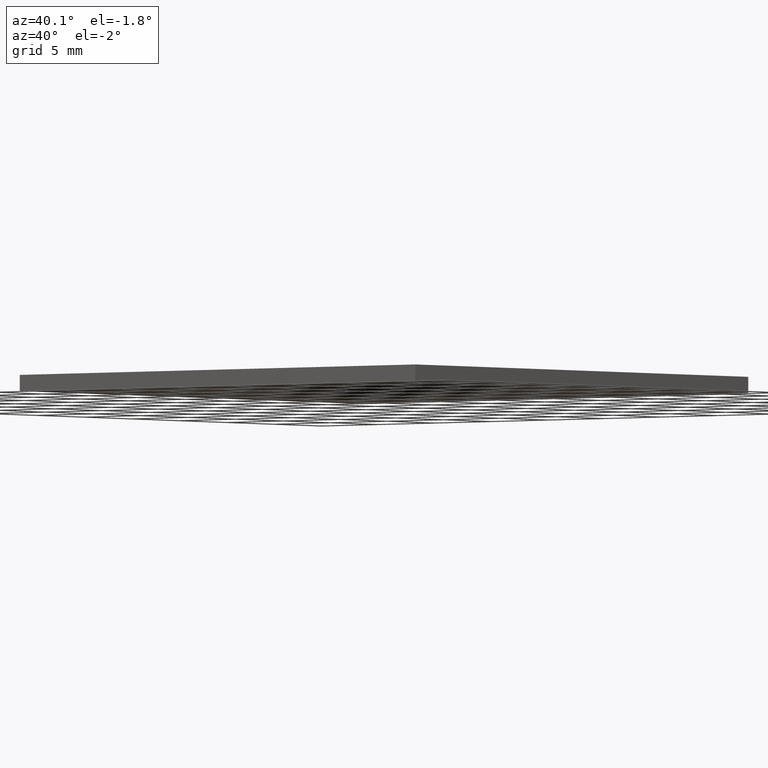
[diagram: clean part render]
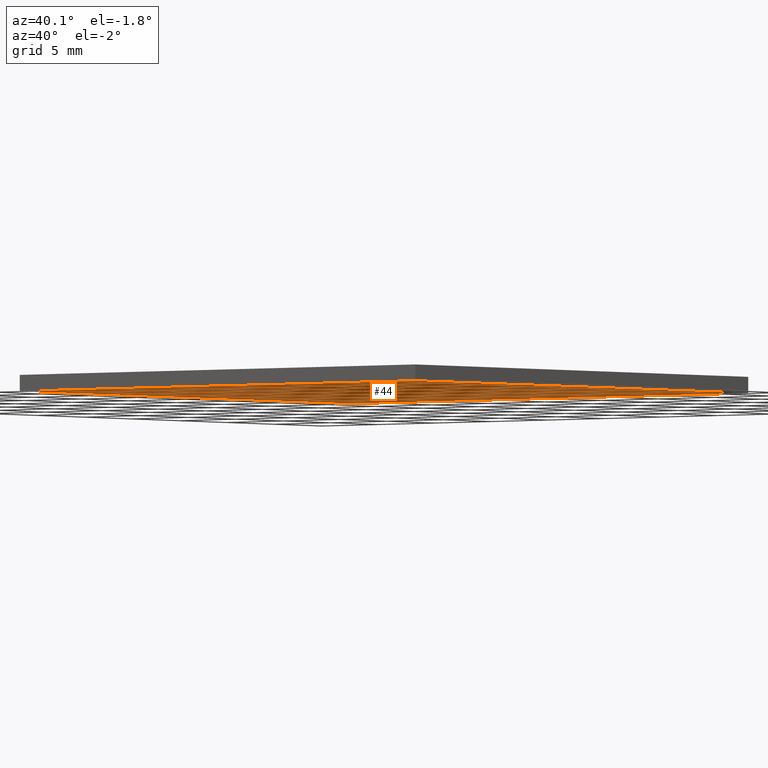
[diagram: same view with one face highlighted and labeled with its STEP entity id]
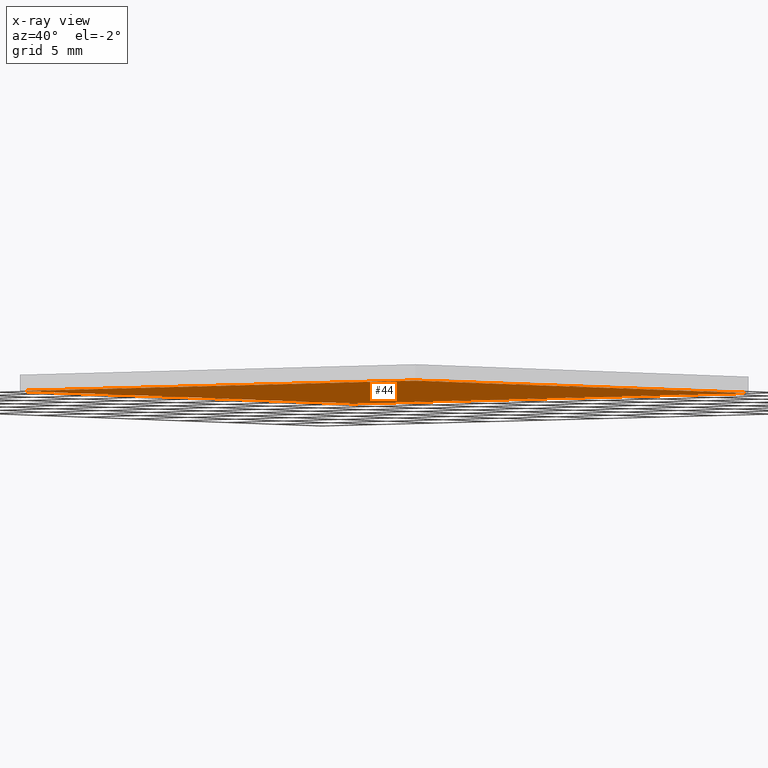
[diagram: x-ray of the same camera — body ghosted, the highlighted face saturated]
A machine part, auxiliary view. The second image highlights one B-rep face of the part: STEP entity #44.
The next image is the same camera in x-ray: the body ghosted, the highlighted face saturated — about 0% of this face is hidden behind the body in this view.
In plain terms, the highlighted planar face has unit normal (0, 0, -1).
Its self-contained STEP definition (entity closure, byte-faithful):
#20 = LINE ( 'NONE', #57, #249 ) ;
#21 = VERTEX_POINT ( 'NONE', #201 ) ;
#24 = EDGE_CURVE ( 'NONE', #292, #289, #20, .T. ) ;
#32 = VECTOR ( 'NONE', #77, 1000.000000000000000 ) ;
#36 = CARTESIAN_POINT ( 'NONE',  ( -17.50000000000000000, -17.50000000000000000, 0.0000000000000000000 ) ) ;
#37 = CARTESIAN_POINT ( 'NONE',  ( 17.50000000000000000, -17.50000000000000000, 0.0000000000000000000 ) ) ;
#44 = ADVANCED_FACE ( 'NONE', ( #105 ), #145, .T. ) ;
#50 = ORIENTED_EDGE ( 'NONE', *, *, #24, .F. ) ;
#52 = VECTOR ( 'NONE', #299, 1000.000000000000000 ) ;
#57 = CARTESIAN_POINT ( 'NONE',  ( -17.50000000000000000, -17.50000000000000000, 0.0000000000000000000 ) ) ;
#70 = VECTOR ( 'NONE', #186, 1000.000000000000000 ) ;
#77 = DIRECTION ( 'NONE',  ( 0.0000000000000000000, 1.000000000000000000, 0.0000000000000000000 ) ) ;
#91 = ORIENTED_EDGE ( 'NONE', *, *, #274, .F. ) ;
#94 = DIRECTION ( 'NONE',  ( 0.0000000000000000000, 0.0000000000000000000, -1.000000000000000000 ) ) ;
#95 = CARTESIAN_POINT ( 'NONE',  ( 0.0000000000000000000, 0.0000000000000000000, 0.0000000000000000000 ) ) ;
#105 = FACE_OUTER_BOUND ( 'NONE', #224, .T. ) ;
#143 = CARTESIAN_POINT ( 'NONE',  ( -17.50000000000000000, -17.50000000000000000, 0.0000000000000000000 ) ) ;
#145 = PLANE ( 'NONE',  #314 ) ;
#164 = CARTESIAN_POINT ( 'NONE',  ( 17.50000000000000000, 17.50000000000000000, 0.0000000000000000000 ) ) ;
#176 = ORIENTED_EDGE ( 'NONE', *, *, #310, .F. ) ;
#186 = DIRECTION ( 'NONE',  ( -1.000000000000000000, -0.0000000000000000000, -0.0000000000000000000 ) ) ;
#190 = CARTESIAN_POINT ( 'NONE',  ( 17.50000000000000000, -17.50000000000000000, 0.0000000000000000000 ) ) ;
#201 = CARTESIAN_POINT ( 'NONE',  ( -17.50000000000000000, 17.50000000000000000, 0.0000000000000000000 ) ) ;
#202 = VERTEX_POINT ( 'NONE', #164 ) ;
#206 = LINE ( 'NONE', #143, #52 ) ;
#222 = DIRECTION ( 'NONE',  ( 1.000000000000000000, 0.0000000000000000000, 0.0000000000000000000 ) ) ;
#224 = EDGE_LOOP ( 'NONE', ( #176, #50, #91, #246 ) ) ;
#246 = ORIENTED_EDGE ( 'NONE', *, *, #264, .F. ) ;
#249 = VECTOR ( 'NONE', #222, 1000.000000000000000 ) ;
#257 = LINE ( 'NONE', #190, #32 ) ;
#264 = EDGE_CURVE ( 'NONE', #202, #21, #291, .T. ) ;
#274 = EDGE_CURVE ( 'NONE', #21, #292, #206, .T. ) ;
#278 = CARTESIAN_POINT ( 'NONE',  ( -17.50000000000000000, 17.50000000000000000, 0.0000000000000000000 ) ) ;
#289 = VERTEX_POINT ( 'NONE', #37 ) ;
#291 = LINE ( 'NONE', #278, #70 ) ;
#292 = VERTEX_POINT ( 'NONE', #36 ) ;
#297 = DIRECTION ( 'NONE',  ( -1.000000000000000000, 0.0000000000000000000, -0.0000000000000000000 ) ) ;
#299 = DIRECTION ( 'NONE',  ( -0.0000000000000000000, -1.000000000000000000, -0.0000000000000000000 ) ) ;
#310 = EDGE_CURVE ( 'NONE', #289, #202, #257, .T. ) ;
#314 = AXIS2_PLACEMENT_3D ( 'NONE', #95, #94, #297 ) ;